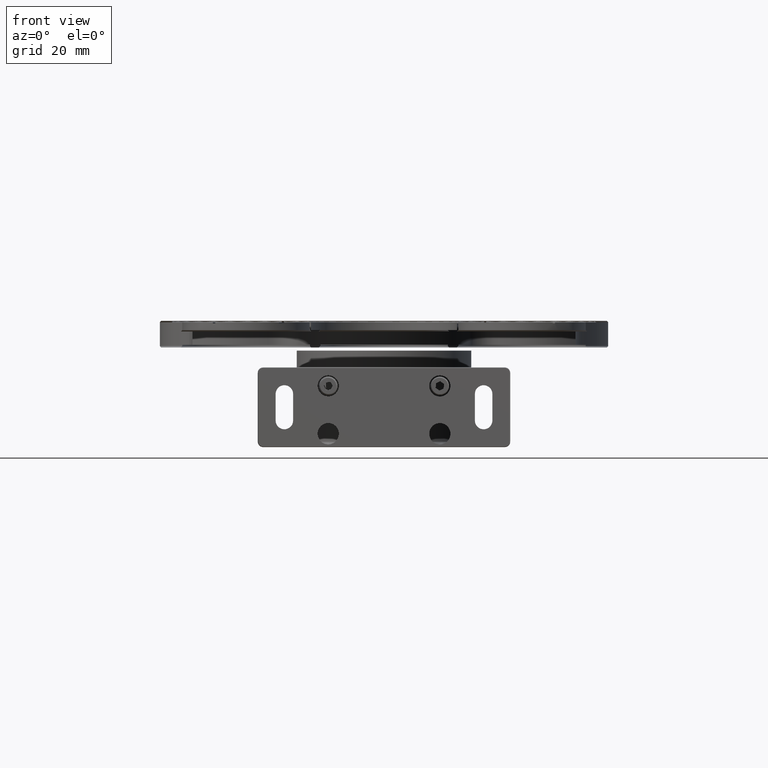
[diagram: clean part render]
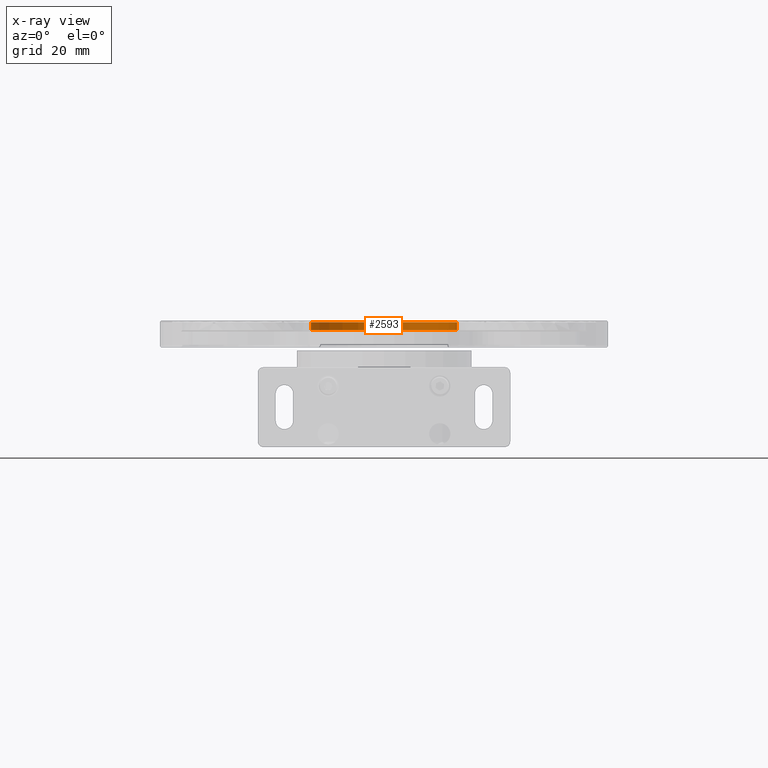
[diagram: x-ray — body ghosted, one internal face saturated and labeled with its STEP entity id]
A machine part, front view, then the same camera in x-ray: the body is ghosted and one INTERNAL B-rep face — a face not visible from any outside direction — is saturated and labeled: STEP entity #2593.
In plain terms, the highlighted cylindrical surface (bore or boss wall) has radius 27.5 mm, axis along (0, 0, 1).
Its self-contained STEP definition (entity closure, byte-faithful):
#985 = CARTESIAN_POINT ( 'NONE',  ( 23.26818358615286542, 9.631466355504741728, 180.2499999999715783 ) ) ;
#1068 = CARTESIAN_POINT ( 'NONE',  ( -4.231816413847136360, 9.631466355504741728, 177.2499999999716636 ) ) ;
#1521 = CIRCLE ( 'NONE', #13038, 27.50000000000000000 ) ;
#2593 = ADVANCED_FACE ( 'NONE', ( #7905, #14530 ), #9830, .T. ) ;
#2814 = CARTESIAN_POINT ( 'NONE',  ( -4.231816413847136360, 9.631466355504741728, 180.2499999999715783 ) ) ;
#3119 = VERTEX_POINT ( 'NONE', #4150 ) ;
#4150 = CARTESIAN_POINT ( 'NONE',  ( 23.26818358615286542, 9.631466355504741728, 177.2499999999716636 ) ) ;
#6365 = ORIENTED_EDGE ( 'NONE', *, *, #12465, .F. ) ;
#6378 = ORIENTED_EDGE ( 'NONE', *, *, #11729, .T. ) ;
#6726 = DIRECTION ( 'NONE',  ( 1.000000000000000000, 0.000000000000000000, 0.000000000000000000 ) ) ;
#7366 = AXIS2_PLACEMENT_3D ( 'NONE', #1068, #8960, #13449 ) ;
#7905 = FACE_OUTER_BOUND ( 'NONE', #12262, .T. ) ;
#8960 = DIRECTION ( 'NONE',  ( 0.000000000000000000, 0.000000000000000000, 1.000000000000000000 ) ) ;
#9751 = DIRECTION ( 'NONE',  ( 0.000000000000000000, 0.000000000000000000, 1.000000000000000000 ) ) ;
#9830 = CYLINDRICAL_SURFACE ( 'NONE', #13657, 27.50000000000000000 ) ;
#9907 = DIRECTION ( 'NONE',  ( 0.000000000000000000, 0.000000000000000000, 1.000000000000000000 ) ) ;
#10051 = VERTEX_POINT ( 'NONE', #985 ) ;
#10421 = EDGE_LOOP ( 'NONE', ( #6365 ) ) ;
#10946 = CARTESIAN_POINT ( 'NONE',  ( -4.231816413847136360, 9.631466355504741728, 177.2499999999716636 ) ) ;
#11729 = EDGE_CURVE ( 'NONE', #3119, #3119, #13733, .T. ) ;
#12262 = EDGE_LOOP ( 'NONE', ( #6378 ) ) ;
#12465 = EDGE_CURVE ( 'NONE', #10051, #10051, #1521, .T. ) ;
#12909 = DIRECTION ( 'NONE',  ( 1.000000000000000000, 0.000000000000000000, 0.000000000000000000 ) ) ;
#13038 = AXIS2_PLACEMENT_3D ( 'NONE', #2814, #9751, #12909 ) ;
#13449 = DIRECTION ( 'NONE',  ( 1.000000000000000000, 0.000000000000000000, 0.000000000000000000 ) ) ;
#13657 = AXIS2_PLACEMENT_3D ( 'NONE', #10946, #9907, #6726 ) ;
#13733 = CIRCLE ( 'NONE', #7366, 27.50000000000000000 ) ;
#14530 = FACE_OUTER_BOUND ( 'NONE', #10421, .T. ) ;